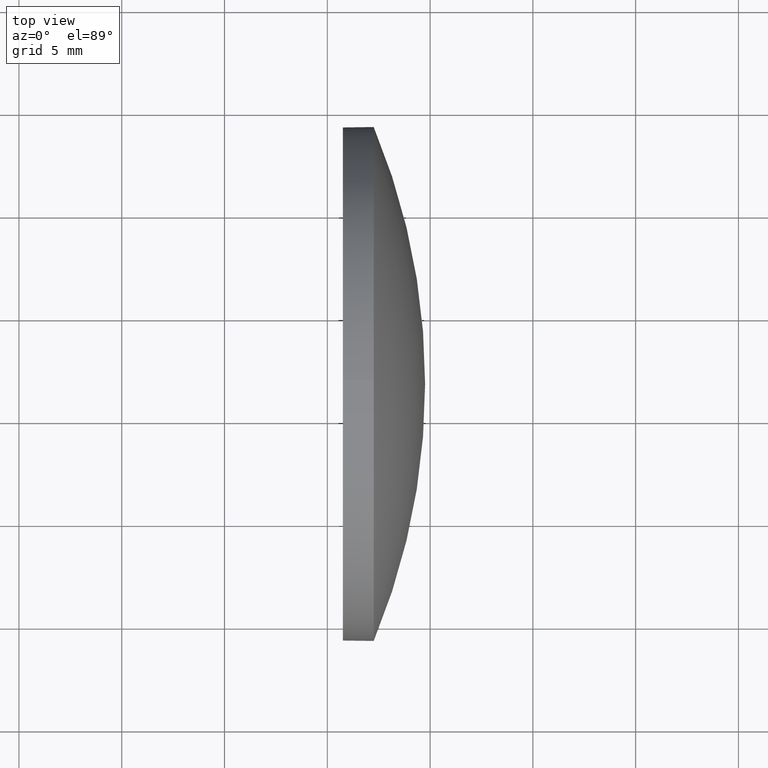
[diagram: clean part render]
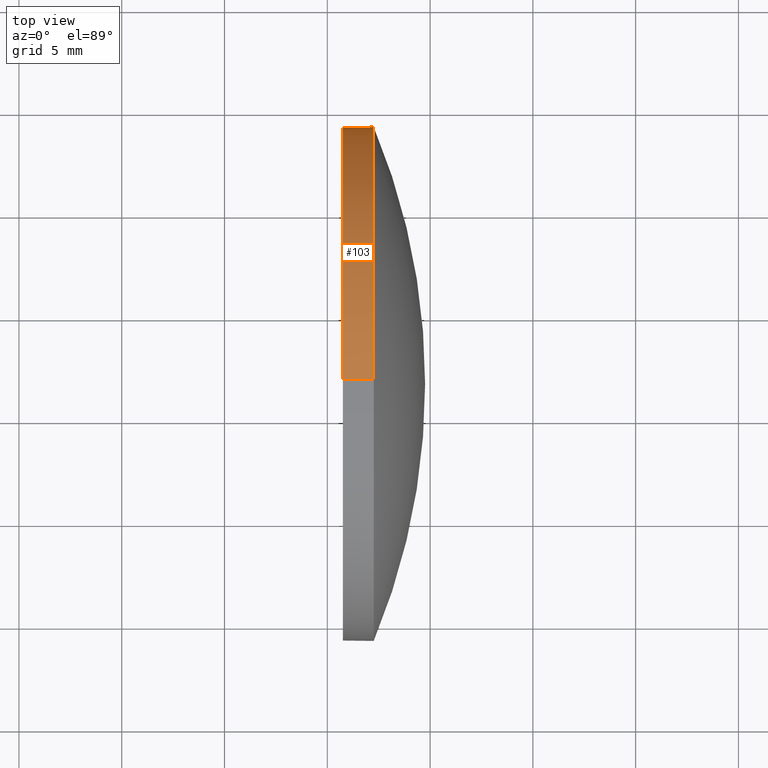
[diagram: same view with one face highlighted and labeled with its STEP entity id]
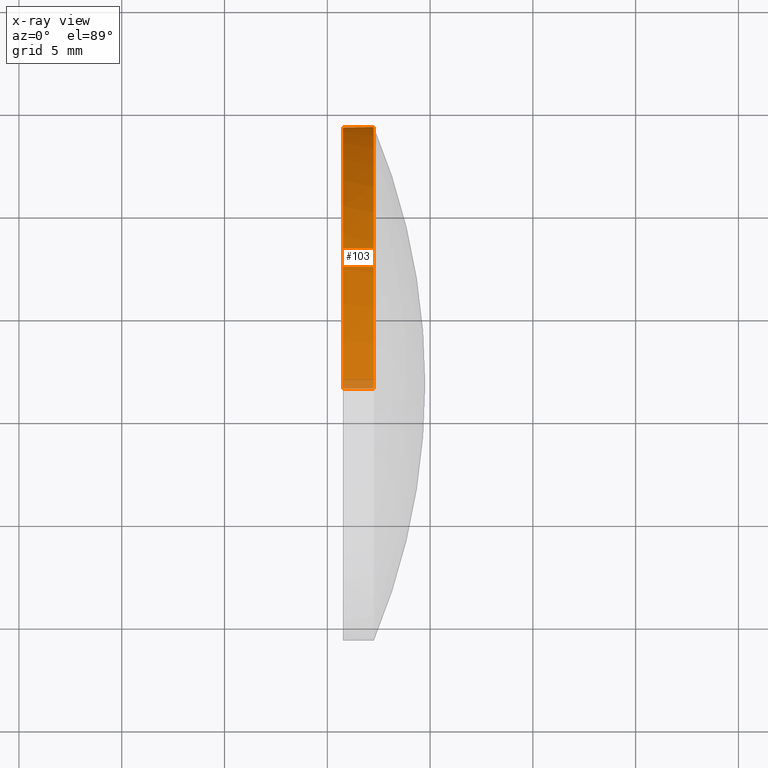
[diagram: x-ray of the same camera — body ghosted, the highlighted face saturated]
A machine part, top view. The second image highlights one B-rep face of the part: STEP entity #103.
The next image is the same camera in x-ray: the body ghosted, the highlighted face saturated — about 3% of this face is hidden behind the body in this view.
In plain terms, the highlighted cylindrical surface (partial cylindrical patch) has radius 12.5 mm, axis along (-1, -0, -0).
Its self-contained STEP definition (entity closure, byte-faithful):
#5 = LINE ( 'NONE', #156, #85 ) ;
#6 = AXIS2_PLACEMENT_3D ( 'NONE', #78, #10, #179 ) ;
#10 = DIRECTION ( 'NONE',  ( -1.000000000000000000, -0.0000000000000000000, -0.0000000000000000000 ) ) ;
#13 = CARTESIAN_POINT ( 'NONE',  ( 592.2578549459785800, 196.7022830089343900, 0.0000000000000000000 ) ) ;
#16 = DIRECTION ( 'NONE',  ( 0.0000000000000000000, 0.0000000000000000000, 1.000000000000000000 ) ) ;
#17 = CIRCLE ( 'NONE', #49, 12.50000000000001100 ) ;
#18 = VERTEX_POINT ( 'NONE', #180 ) ;
#21 = CIRCLE ( 'NONE', #39, 12.50000000000001100 ) ;
#22 = VERTEX_POINT ( 'NONE', #105 ) ;
#23 = CARTESIAN_POINT ( 'NONE',  ( 590.7578549459785800, 196.7022830089343900, -12.50000000000001100 ) ) ;
#24 = DIRECTION ( 'NONE',  ( -1.000000000000000000, -0.0000000000000000000, -0.0000000000000000000 ) ) ;
#30 = ORIENTED_EDGE ( 'NONE', *, *, #161, .T. ) ;
#39 = AXIS2_PLACEMENT_3D ( 'NONE', #177, #92, #120 ) ;
#49 = AXIS2_PLACEMENT_3D ( 'NONE', #13, #24, #154 ) ;
#58 = VECTOR ( 'NONE', #102, 1000.000000000000000 ) ;
#60 = ORIENTED_EDGE ( 'NONE', *, *, #145, .T. ) ;
#69 = EDGE_LOOP ( 'NONE', ( #151, #30, #176, #150, #60 ) ) ;
#74 = AXIS2_PLACEMENT_3D ( 'NONE', #125, #185, #16 ) ;
#76 = VERTEX_POINT ( 'NONE', #23 ) ;
#78 = CARTESIAN_POINT ( 'NONE',  ( 588.3922390432176100, 196.7022830089343900, 0.0000000000000000000 ) ) ;
#80 = DIRECTION ( 'NONE',  ( -1.000000000000000000, -0.0000000000000000000, -0.0000000000000000000 ) ) ;
#85 = VECTOR ( 'NONE', #80, 1000.000000000000000 ) ;
#92 = DIRECTION ( 'NONE',  ( -1.000000000000000000, -0.0000000000000000000, -0.0000000000000000000 ) ) ;
#94 = EDGE_CURVE ( 'NONE', #22, #76, #21, .T. ) ;
#95 = LINE ( 'NONE', #184, #58 ) ;
#97 = CARTESIAN_POINT ( 'NONE',  ( 592.2578549459785800, 196.7022830089343900, 12.50000000000001100 ) ) ;
#102 = DIRECTION ( 'NONE',  ( -1.000000000000000000, -0.0000000000000000000, -0.0000000000000000000 ) ) ;
#103 = ADVANCED_FACE ( 'NONE', ( #148 ), #106, .T. ) ;
#105 = CARTESIAN_POINT ( 'NONE',  ( 590.7578549459785800, 196.7022830089343900, 12.50000000000001100 ) ) ;
#106 = CYLINDRICAL_SURFACE ( 'NONE', #6, 12.50000000000001100 ) ;
#120 = DIRECTION ( 'NONE',  ( 0.0000000000000000000, 0.0000000000000000000, 1.000000000000000000 ) ) ;
#124 = EDGE_CURVE ( 'NONE', #18, #178, #17, .T. ) ;
#125 = CARTESIAN_POINT ( 'NONE',  ( 592.2578549459785800, 196.7022830089343900, 0.0000000000000000000 ) ) ;
#130 = CIRCLE ( 'NONE', #74, 12.50000000000001100 ) ;
#135 = EDGE_CURVE ( 'NONE', #169, #22, #5, .T. ) ;
#145 = EDGE_CURVE ( 'NONE', #169, #18, #130, .T. ) ;
#148 = FACE_OUTER_BOUND ( 'NONE', #69, .T. ) ;
#150 = ORIENTED_EDGE ( 'NONE', *, *, #135, .F. ) ;
#151 = ORIENTED_EDGE ( 'NONE', *, *, #124, .T. ) ;
#154 = DIRECTION ( 'NONE',  ( 0.0000000000000000000, 0.0000000000000000000, 1.000000000000000000 ) ) ;
#155 = CARTESIAN_POINT ( 'NONE',  ( 592.2578549459785800, 196.7022830089343900, -12.50000000000001100 ) ) ;
#156 = CARTESIAN_POINT ( 'NONE',  ( 588.3922390432176100, 196.7022830089343900, 12.50000000000001100 ) ) ;
#161 = EDGE_CURVE ( 'NONE', #178, #76, #95, .T. ) ;
#169 = VERTEX_POINT ( 'NONE', #97 ) ;
#176 = ORIENTED_EDGE ( 'NONE', *, *, #94, .F. ) ;
#177 = CARTESIAN_POINT ( 'NONE',  ( 590.7578549459785800, 196.7022830089343900, 0.0000000000000000000 ) ) ;
#178 = VERTEX_POINT ( 'NONE', #155 ) ;
#179 = DIRECTION ( 'NONE',  ( 0.0000000000000000000, 0.0000000000000000000, 1.000000000000000000 ) ) ;
#180 = CARTESIAN_POINT ( 'NONE',  ( 592.2578549459785800, 209.2022830089343600, 1.530808498934184400E-015 ) ) ;
#184 = CARTESIAN_POINT ( 'NONE',  ( 588.3922390432176100, 196.7022830089343900, -12.50000000000001100 ) ) ;
#185 = DIRECTION ( 'NONE',  ( -1.000000000000000000, -0.0000000000000000000, -0.0000000000000000000 ) ) ;